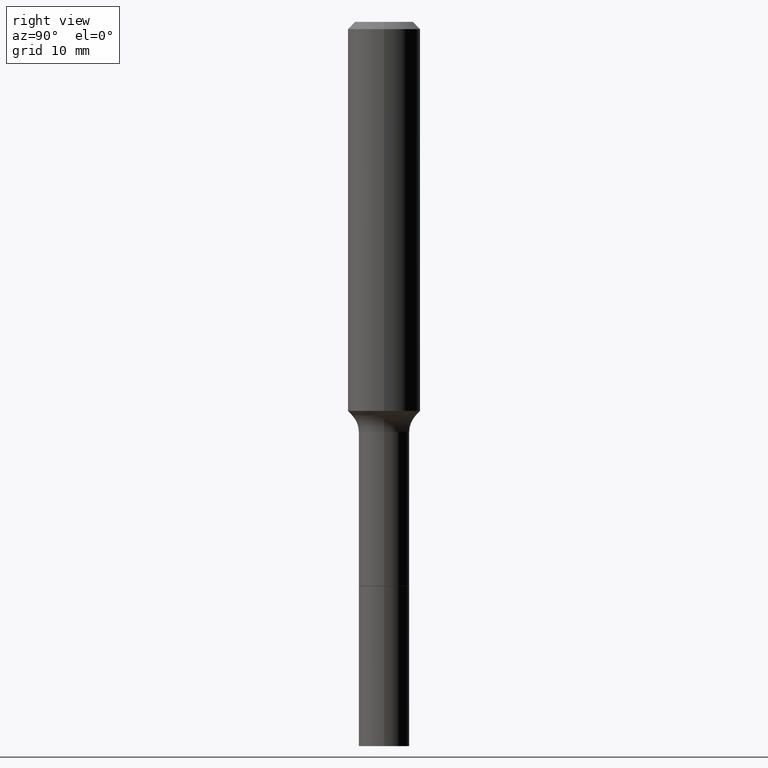
[diagram: clean part render]
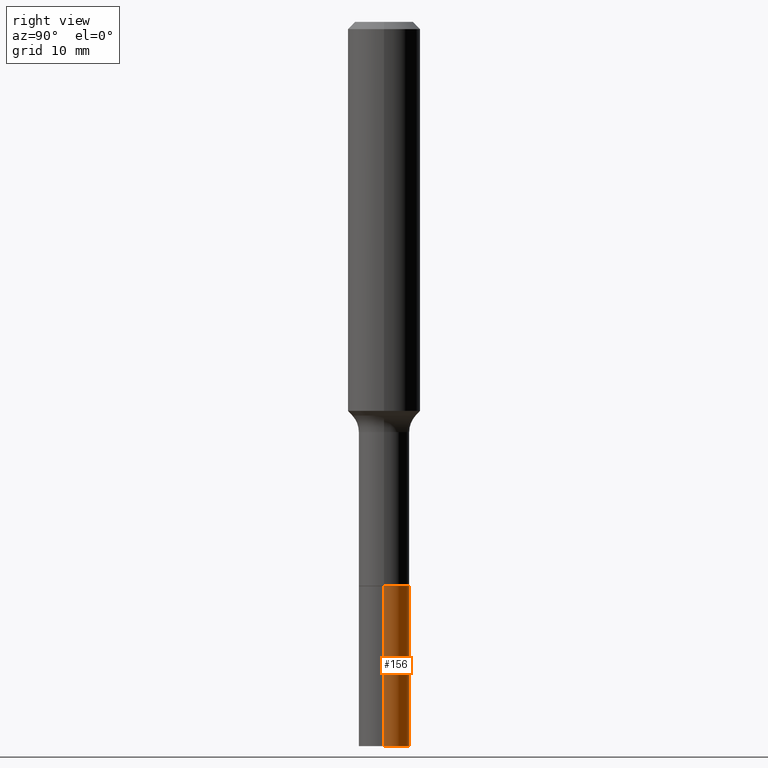
[diagram: same view with one face highlighted and labeled with its STEP entity id]
A machine part, right view. The second image highlights one B-rep face of the part: STEP entity #156.
In plain terms, the highlighted cylindrical surface (edge-blend (fillet) strip) has radius 2.1006 mm, axis along (-0, 0, 1).
Its self-contained STEP definition (entity closure, byte-faithful):
#32 = EDGE_CURVE ( 'NONE', #223, #502, #157, .T. ) ;
#36 = DIRECTION ( 'NONE',  ( -2.445468806185136597E-29, 3.491481338843145583E-15, 1.000000000000000000 ) ) ;
#59 = VERTEX_POINT ( 'NONE', #422 ) ;
#128 = EDGE_CURVE ( 'NONE', #306, #502, #155, .T. ) ;
#130 = CARTESIAN_POINT ( 'NONE',  ( 0.08269999999999999574, -7.002514973183811216E-15, -1.840200000000000058 ) ) ;
#141 = ORIENTED_EDGE ( 'NONE', *, *, #32, .F. ) ;
#155 = LINE ( 'NONE', #238, #299 ) ;
#156 = ADVANCED_FACE ( 'NONE', ( #392 ), #432, .T. ) ;
#157 = CIRCLE ( 'NONE', #439, 0.08269999999999999574 ) ;
#168 = EDGE_CURVE ( 'NONE', #59, #223, #471, .T. ) ;
#197 = CARTESIAN_POINT ( 'NONE',  ( 5.776686413970529753E-29, -8.247577218615279626E-15, -2.362200000000000077 ) ) ;
#205 = DIRECTION ( 'NONE',  ( 1.000000000000000000, -6.982962677686261977E-15, 0.000000000000000000 ) ) ;
#216 = ORIENTED_EDGE ( 'NONE', *, *, #128, .T. ) ;
#223 = VERTEX_POINT ( 'NONE', #130 ) ;
#234 = ORIENTED_EDGE ( 'NONE', *, *, #168, .F. ) ;
#238 = CARTESIAN_POINT ( 'NONE',  ( -0.08270000000000006513, -5.837405117265553713E-15, -1.840200000000000058 ) ) ;
#244 = CARTESIAN_POINT ( 'NONE',  ( 4.500151697141887719E-29, -6.425023959739156537E-15, -1.840200000000000058 ) ) ;
#247 = DIRECTION ( 'NONE',  ( 1.000000000000000000, -6.982962677686267499E-15, 0.000000000000000000 ) ) ;
#269 = DIRECTION ( 'NONE',  ( -2.445468806185136597E-29, 3.491481338843145583E-15, 1.000000000000000000 ) ) ;
#277 = CIRCLE ( 'NONE', #399, 0.08270000000000013451 ) ;
#288 = ORIENTED_EDGE ( 'NONE', *, *, #472, .T. ) ;
#290 = AXIS2_PLACEMENT_3D ( 'NONE', #244, #309, #247 ) ;
#299 = VECTOR ( 'NONE', #437, 39.37007874015748143 ) ;
#306 = VERTEX_POINT ( 'NONE', #325 ) ;
#309 = DIRECTION ( 'NONE',  ( -2.445468806185136597E-29, 3.491481338843145583E-15, 1.000000000000000000 ) ) ;
#325 = CARTESIAN_POINT ( 'NONE',  ( -0.08270000000000013451, -6.748681746703613286E-15, -2.362200000000000077 ) ) ;
#390 = CARTESIAN_POINT ( 'NONE',  ( 0.08270000000000006513, -7.002514973183811216E-15, -1.840200000000000058 ) ) ;
#392 = FACE_OUTER_BOUND ( 'NONE', #490, .T. ) ;
#397 = CARTESIAN_POINT ( 'NONE',  ( -0.08269999999999999574, -6.748681746703614864E-15, -1.840200000000000058 ) ) ;
#399 = AXIS2_PLACEMENT_3D ( 'NONE', #197, #36, #205 ) ;
#403 = DIRECTION ( 'NONE',  ( -2.445468806185136877E-29, 3.491481338843145188E-15, 1.000000000000000000 ) ) ;
#408 = VECTOR ( 'NONE', #403, 39.37007874015748143 ) ;
#422 = CARTESIAN_POINT ( 'NONE',  ( 0.08270000000000013451, -8.825068232059933517E-15, -2.362200000000000077 ) ) ;
#432 = CYLINDRICAL_SURFACE ( 'NONE', #290, 0.08270000000000006513 ) ;
#437 = DIRECTION ( 'NONE',  ( -2.445468806185136877E-29, 3.491481338843145188E-15, 1.000000000000000000 ) ) ;
#439 = AXIS2_PLACEMENT_3D ( 'NONE', #466, #269, #507 ) ;
#466 = CARTESIAN_POINT ( 'NONE',  ( 4.500151697141887719E-29, -6.425023959739156537E-15, -1.840200000000000058 ) ) ;
#471 = LINE ( 'NONE', #390, #408 ) ;
#472 = EDGE_CURVE ( 'NONE', #59, #306, #277, .T. ) ;
#490 = EDGE_LOOP ( 'NONE', ( #288, #216, #141, #234 ) ) ;
#502 = VERTEX_POINT ( 'NONE', #397 ) ;
#507 = DIRECTION ( 'NONE',  ( 1.000000000000000000, -6.982962677686273021E-15, 0.000000000000000000 ) ) ;